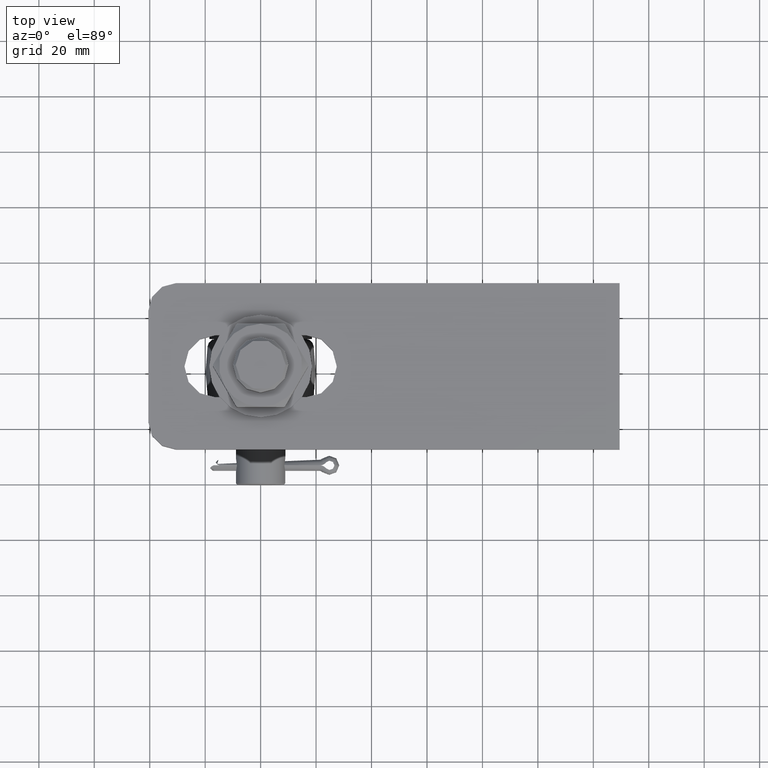
[diagram: clean part render]
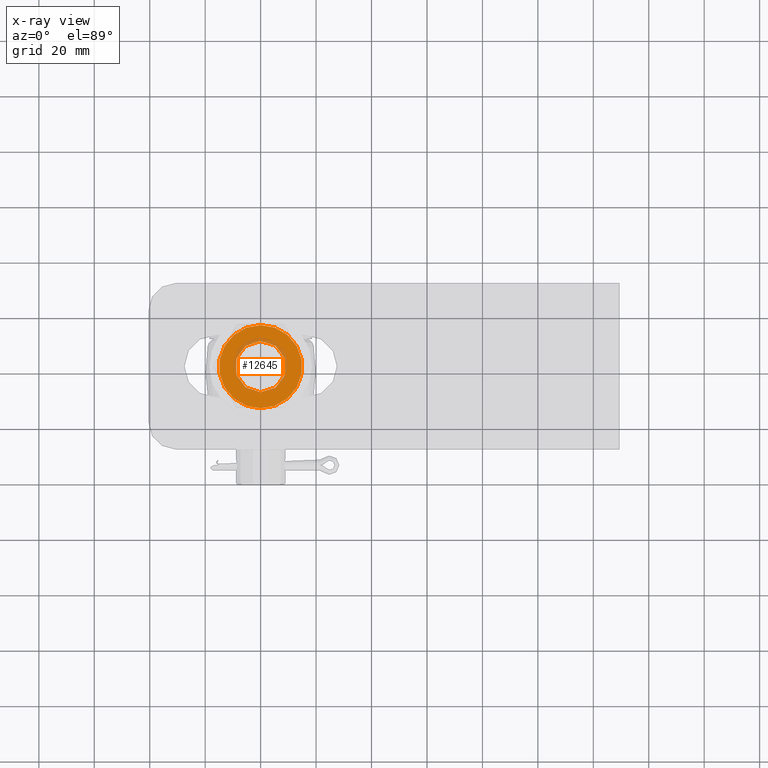
[diagram: x-ray — body ghosted, one internal face saturated and labeled with its STEP entity id]
A machine part, top view, then the same camera in x-ray: the body is ghosted and one INTERNAL B-rep face — a face not visible from any outside direction — is saturated and labeled: STEP entity #12645.
In plain terms, the highlighted planar face has unit normal (-0, -0, -1).
Its self-contained STEP definition (entity closure, byte-faithful):
#208 = CIRCLE ( 'NONE', #11071, 14.99999999999989875 ) ;
#425 = DIRECTION ( 'NONE',  ( -6.320590296112837812E-39, 0.000000000000000000, 1.000000000000000000 ) ) ;
#433 = CARTESIAN_POINT ( 'NONE',  ( -1.502314598737194333E-15, -7.999999999999979572, 14.99999999999989519 ) ) ;
#1035 = CARTESIAN_POINT ( 'NONE',  ( -3.697785487376946620E-29, -7.999999999999979572, -9.249999999999939604 ) ) ;
#1265 = CARTESIAN_POINT ( 'NONE',  ( 1.132798289211257325E-15, -7.999999999999979572, 9.249999999999939604 ) ) ;
#1337 = VERTEX_POINT ( 'NONE', #1035 ) ;
#2211 = CARTESIAN_POINT ( 'NONE',  ( -3.697785493223492838E-29, -7.999999999999979572, 0.000000000000000000 ) ) ;
#2314 = CIRCLE ( 'NONE', #8781, 9.249999999999939604 ) ;
#2540 = ORIENTED_EDGE ( 'NONE', *, *, #16791, .T. ) ;
#2754 = DIRECTION ( 'NONE',  ( -6.320590453916717531E-39, 0.000000000000000000, 1.000000000000000000 ) ) ;
#2885 = DIRECTION ( 'NONE',  ( -0.000000000000000000, -1.000000000000000000, -1.029231301106134717E-41 ) ) ;
#2980 = EDGE_LOOP ( 'NONE', ( #15707, #15164, #15038, #2540, #5754, #9858 ) ) ;
#3287 = DIRECTION ( 'NONE',  ( -6.320590296112837812E-39, 0.000000000000000000, 1.000000000000000000 ) ) ;
#3306 = VERTEX_POINT ( 'NONE', #1265 ) ;
#3598 = DIRECTION ( 'NONE',  ( -0.000000000000000000, -1.000000000000000000, -1.029231301106134717E-41 ) ) ;
#3647 = EDGE_CURVE ( 'NONE', #1337, #3306, #2314, .T. ) ;
#4303 = CARTESIAN_POINT ( 'NONE',  ( 12.99038105676658006, -7.999999999999979572, 7.499999999999946709 ) ) ;
#4388 = CARTESIAN_POINT ( 'NONE',  ( -3.697785493223492838E-29, -7.999999999999979572, 0.000000000000000000 ) ) ;
#4840 = EDGE_CURVE ( 'NONE', #16858, #5022, #7741, .T. ) ;
#4922 = AXIS2_PLACEMENT_3D ( 'NONE', #2211, #3598, #15293 ) ;
#4989 = CIRCLE ( 'NONE', #10315, 14.99999999999989875 ) ;
#5022 = VERTEX_POINT ( 'NONE', #433 ) ;
#5445 = DIRECTION ( 'NONE',  ( 0.000000000000000000, 1.000000000000000000, 1.029231301106134717E-41 ) ) ;
#5690 = VERTEX_POINT ( 'NONE', #12828 ) ;
#5754 = ORIENTED_EDGE ( 'NONE', *, *, #7118, .T. ) ;
#5834 = DIRECTION ( 'NONE',  ( 0.000000000000000000, 1.000000000000000000, 1.029231301106134717E-41 ) ) ;
#5865 = EDGE_CURVE ( 'NONE', #5022, #10972, #12257, .T. ) ;
#6276 = DIRECTION ( 'NONE',  ( -0.000000000000000000, -1.000000000000000000, -1.029231301106134717E-41 ) ) ;
#6787 = VERTEX_POINT ( 'NONE', #12522 ) ;
#6791 = DIRECTION ( 'NONE',  ( 6.320590296112837812E-39, 0.000000000000000000, -1.000000000000000000 ) ) ;
#6816 = DIRECTION ( 'NONE',  ( -8.881784197001252323E-16, 0.000000000000000000, 1.000000000000000000 ) ) ;
#7117 = DIRECTION ( 'NONE',  ( -0.000000000000000000, -1.000000000000000000, -1.029231301106134717E-41 ) ) ;
#7118 = EDGE_CURVE ( 'NONE', #5690, #6787, #10759, .T. ) ;
#7301 = EDGE_CURVE ( 'NONE', #10972, #8642, #4989, .T. ) ;
#7515 = DIRECTION ( 'NONE',  ( -0.000000000000000000, -1.000000000000000000, -1.029231301106134717E-41 ) ) ;
#7741 = CIRCLE ( 'NONE', #12096, 14.99999999999989875 ) ;
#7856 = AXIS2_PLACEMENT_3D ( 'NONE', #8589, #15413, #13894 ) ;
#8076 = ORIENTED_EDGE ( 'NONE', *, *, #13631, .T. ) ;
#8369 = CARTESIAN_POINT ( 'NONE',  ( -3.697785493223492838E-29, -7.999999999999979572, 0.000000000000000000 ) ) ;
#8589 = CARTESIAN_POINT ( 'NONE',  ( -3.697785493223492838E-29, -7.999999999999979572, 0.000000000000000000 ) ) ;
#8642 = VERTEX_POINT ( 'NONE', #13294 ) ;
#8781 = AXIS2_PLACEMENT_3D ( 'NONE', #8369, #5445, #2754 ) ;
#9814 = FACE_OUTER_BOUND ( 'NONE', #2980, .T. ) ;
#9858 = ORIENTED_EDGE ( 'NONE', *, *, #17031, .T. ) ;
#9918 = CARTESIAN_POINT ( 'NONE',  ( -3.697785493223492838E-29, -7.999999999999979572, 0.000000000000000000 ) ) ;
#10315 = AXIS2_PLACEMENT_3D ( 'NONE', #14221, #7515, #3287 ) ;
#10462 = FACE_BOUND ( 'NONE', #15136, .T. ) ;
#10682 = CARTESIAN_POINT ( 'NONE',  ( -12.99038105676658006, -7.999999999999979572, 7.499999999999946709 ) ) ;
#10759 = CIRCLE ( 'NONE', #11564, 14.99999999999989875 ) ;
#10972 = VERTEX_POINT ( 'NONE', #10682 ) ;
#11071 = AXIS2_PLACEMENT_3D ( 'NONE', #11903, #6276, #14636 ) ;
#11564 = AXIS2_PLACEMENT_3D ( 'NONE', #16557, #14943, #6791 ) ;
#11903 = CARTESIAN_POINT ( 'NONE',  ( -3.697785493223492838E-29, -7.999999999999979572, 0.000000000000000000 ) ) ;
#12081 = CIRCLE ( 'NONE', #4922, 14.99999999999989875 ) ;
#12096 = AXIS2_PLACEMENT_3D ( 'NONE', #14964, #2885, #6816 ) ;
#12257 = CIRCLE ( 'NONE', #13559, 14.99999999999989875 ) ;
#12342 = CIRCLE ( 'NONE', #15948, 9.249999999999939604 ) ;
#12392 = ORIENTED_EDGE ( 'NONE', *, *, #3647, .T. ) ;
#12522 = CARTESIAN_POINT ( 'NONE',  ( 12.99038105676657473, -7.999999999999979572, -7.499999999999953815 ) ) ;
#12624 = PLANE ( 'NONE',  #7856 ) ;
#12645 = ADVANCED_FACE ( 'NONE', ( #10462, #9814 ), #12624, .F. ) ;
#12828 = CARTESIAN_POINT ( 'NONE',  ( -1.502314598737194333E-15, -7.999999999999979572, -14.99999999999989519 ) ) ;
#13294 = CARTESIAN_POINT ( 'NONE',  ( -12.99038105676658006, -7.999999999999979572, -7.499999999999946709 ) ) ;
#13559 = AXIS2_PLACEMENT_3D ( 'NONE', #4388, #7117, #425 ) ;
#13631 = EDGE_CURVE ( 'NONE', #3306, #1337, #12342, .T. ) ;
#13894 = DIRECTION ( 'NONE',  ( -6.320590353131817424E-39, 1.029231301106120188E-41, 1.000000000000000000 ) ) ;
#14221 = CARTESIAN_POINT ( 'NONE',  ( -3.697785493223492838E-29, -7.999999999999979572, 0.000000000000000000 ) ) ;
#14636 = DIRECTION ( 'NONE',  ( 1.776356839400250465E-15, 0.000000000000000000, 1.000000000000000000 ) ) ;
#14943 = DIRECTION ( 'NONE',  ( 0.000000000000000000, -1.000000000000000000, -1.029231301106134717E-41 ) ) ;
#14964 = CARTESIAN_POINT ( 'NONE',  ( -3.697785493223492838E-29, -7.999999999999979572, 0.000000000000000000 ) ) ;
#15038 = ORIENTED_EDGE ( 'NONE', *, *, #7301, .T. ) ;
#15136 = EDGE_LOOP ( 'NONE', ( #12392, #8076 ) ) ;
#15164 = ORIENTED_EDGE ( 'NONE', *, *, #5865, .T. ) ;
#15293 = DIRECTION ( 'NONE',  ( 8.881784197001252323E-16, 0.000000000000000000, 1.000000000000000000 ) ) ;
#15354 = DIRECTION ( 'NONE',  ( -6.320590453916717531E-39, 0.000000000000000000, 1.000000000000000000 ) ) ;
#15413 = DIRECTION ( 'NONE',  ( 1.301069886582539535E-79, 1.000000000000000000, -1.029231301106120188E-41 ) ) ;
#15707 = ORIENTED_EDGE ( 'NONE', *, *, #4840, .T. ) ;
#15948 = AXIS2_PLACEMENT_3D ( 'NONE', #9918, #5834, #15354 ) ;
#16557 = CARTESIAN_POINT ( 'NONE',  ( -3.697785493223492838E-29, -7.999999999999979572, 0.000000000000000000 ) ) ;
#16791 = EDGE_CURVE ( 'NONE', #8642, #5690, #208, .T. ) ;
#16858 = VERTEX_POINT ( 'NONE', #4303 ) ;
#17031 = EDGE_CURVE ( 'NONE', #6787, #16858, #12081, .T. ) ;